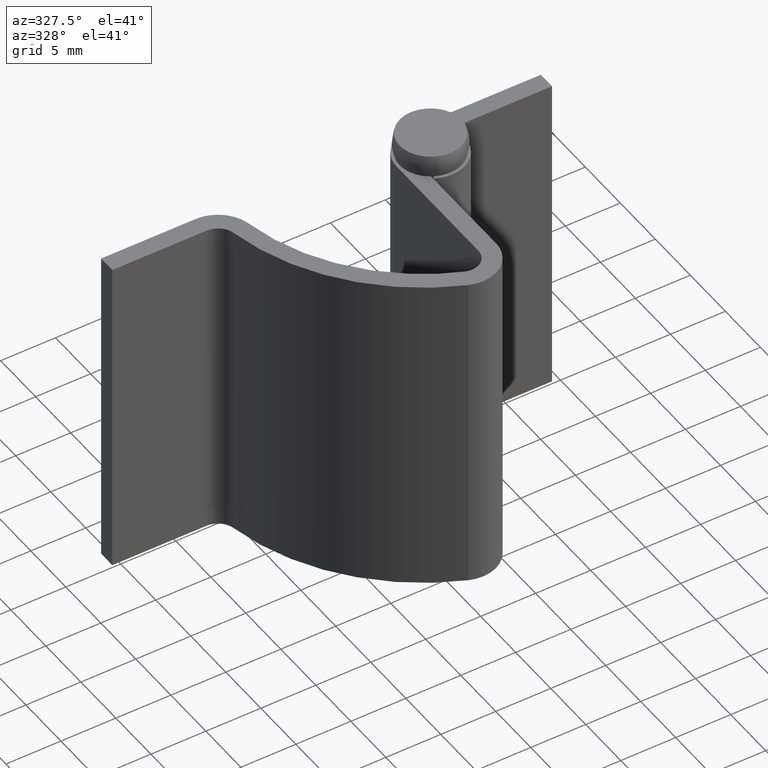
[diagram: clean part render]
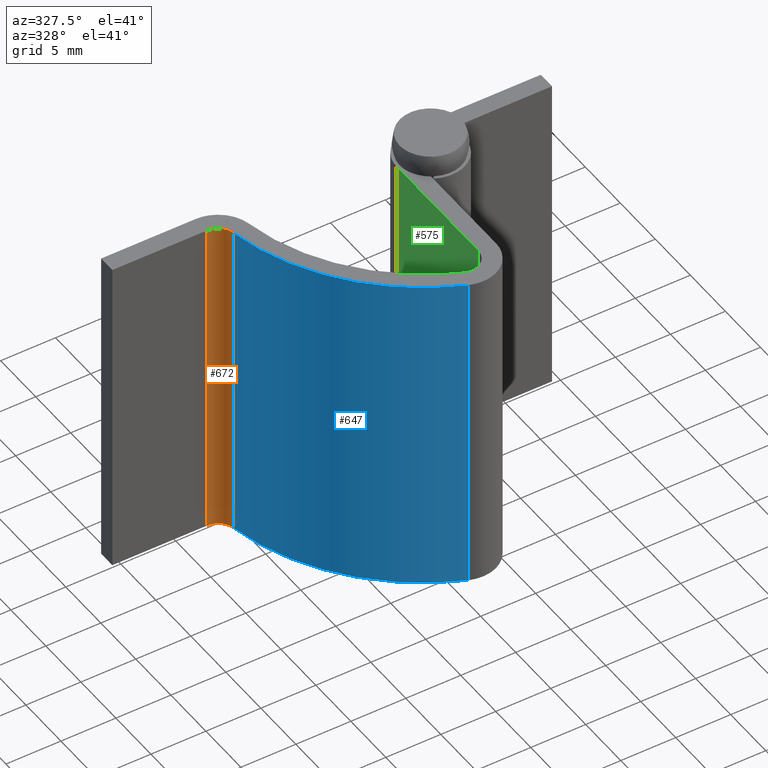
[diagram: same view with three faces highlighted in distinct colors, each labeled with its STEP entity id]
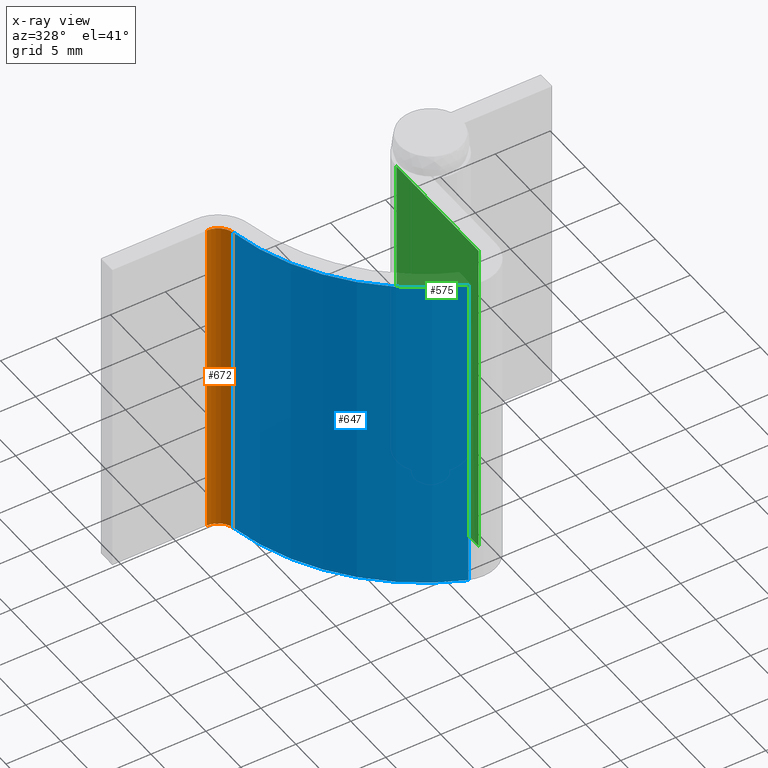
[diagram: x-ray of the same camera — body ghosted, the three highlighted faces saturated]
A machine part, auxiliary view with three faces highlighted in distinct colors.
The next image is the same camera in x-ray (body ghosted, the three faces saturated) — at least one of them is partly hidden behind the body in this view.
Their STEP definitions:

[orange] entity #672 — the highlighted face is a freeform B-spline surface patch.
#187=CARTESIAN_POINT('',(-17.818602504459250,0.170421412215483,3.0));
#188=VERTEX_POINT('',#187);
#202=CARTESIAN_POINT('',(-19.395583999999999,1.500000000000000,3.0));
#203=VERTEX_POINT('',#202);
#204=CARTESIAN_POINT('',(-17.818602504459250,0.170421412215483,3.0));
#205=CARTESIAN_POINT('',(-18.046601182845382,1.499998500000002,3.000000000000000));
#206=CARTESIAN_POINT('',(-19.395583999999999,1.500000000000000,3.0));
#214=(BOUNDED_CURVE()B_SPLINE_CURVE(2,(#204,#205,#206),.UNSPECIFIED.,.F.,.U.)CURVE()GEOMETRIC_REPRESENTATION_ITEM()QUASI_UNIFORM_CURVE()RATIONAL_B_SPLINE_CURVE((1.0,0.764530986172135,1.0))REPRESENTATION_ITEM(''));
#215=EDGE_CURVE('',#188,#203,#214,.T.);
#314=CARTESIAN_POINT('',(-19.395583999999999,1.500000000000000,33.000008000000037));
#315=VERTEX_POINT('',#314);
#321=CARTESIAN_POINT('',(-17.818602504459250,0.170421412215483,33.000008000000037));
#322=VERTEX_POINT('',#321);
#323=CARTESIAN_POINT('',(-17.818602504459250,0.170421412215483,33.000008000000037));
#324=CARTESIAN_POINT('',(-18.046601182845382,1.499998500000002,33.000008000000037));
#325=CARTESIAN_POINT('',(-19.395583999999999,1.500000000000000,33.000008000000037));
#333=(BOUNDED_CURVE()B_SPLINE_CURVE(2,(#323,#324,#325),.UNSPECIFIED.,.F.,.U.)CURVE()GEOMETRIC_REPRESENTATION_ITEM()QUASI_UNIFORM_CURVE()RATIONAL_B_SPLINE_CURVE((1.0,0.764530986172135,1.0))REPRESENTATION_ITEM(''));
#334=EDGE_CURVE('',#322,#315,#333,.T.);
#640=CARTESIAN_POINT('',(-17.818602504459250,0.170421412215483,33.000008000000037));
#641=CARTESIAN_POINT('',(-17.818602504459250,0.170421412215483,3.0));
#642=QUASI_UNIFORM_CURVE('',1,(#640,#641),.UNSPECIFIED.,.F.,.U.);
#643=EDGE_CURVE('',#322,#188,#642,.T.);
#648=CARTESIAN_POINT('',(-17.809272221801908,0.108838907552082,33.750008200000053));
#649=CARTESIAN_POINT('',(-17.809272221801908,0.108838907552082,2.231249795000000));
#650=CARTESIAN_POINT('',(-18.004610264678906,1.592578650106793,33.750008200000046));
#651=CARTESIAN_POINT('',(-18.004610264678906,1.592578650106793,2.231249795000000));
#652=CARTESIAN_POINT('',(-19.498079351925170,1.496710719748701,33.750008200000053));
#653=CARTESIAN_POINT('',(-19.498079351925170,1.496710719748701,2.231249795000000));
#661=(BOUNDED_SURFACE()B_SPLINE_SURFACE(1,2,((#648,#650,#652),(#649,#651,#653)),.UNSPECIFIED.,.F.,.F.,.U.)B_SPLINE_SURFACE_WITH_KNOTS((2,2),(3,3),(0.0,31.518758405000050),(0.0,2.526598923746187),.UNSPECIFIED.)GEOMETRIC_REPRESENTATION_ITEM()RATIONAL_B_SPLINE_SURFACE(((1.0,0.728245906885297,0.994316978863974),(1.0,0.728245906885297,0.994316978863974)))REPRESENTATION_ITEM('')SURFACE());
#662=ORIENTED_EDGE('',*,*,#215,.F.);
#663=ORIENTED_EDGE('',*,*,#643,.F.);
#664=ORIENTED_EDGE('',*,*,#334,.T.);
#665=CARTESIAN_POINT('',(-19.395583999999999,1.500000000000000,33.000008000000037));
#666=CARTESIAN_POINT('',(-19.395583999999999,1.500000000000000,3.0));
#667=QUASI_UNIFORM_CURVE('',1,(#665,#666),.UNSPECIFIED.,.F.,.U.);
#668=EDGE_CURVE('',#315,#203,#667,.T.);
#669=ORIENTED_EDGE('',*,*,#668,.T.);
#670=EDGE_LOOP('',(#662,#663,#664,#669));
#671=FACE_OUTER_BOUND('',#670,.T.);
#672=ADVANCED_FACE('',(#671),#661,.F.);

[blue] entity #647 — the highlighted face is a freeform B-spline surface patch.
#170=CARTESIAN_POINT('',(-5.909637492893420,-14.662561530130020,3.0));
#171=VERTEX_POINT('',#170);
#187=CARTESIAN_POINT('',(-17.818602504459250,0.170421412215483,3.0));
#188=VERTEX_POINT('',#187);
#189=CARTESIAN_POINT('',(-17.818602504459250,0.170421412215483,3.0));
#190=CARTESIAN_POINT('',(-15.980121221927341,-10.550686180056069,3.000000000000000));
#191=CARTESIAN_POINT('',(-5.909637492893428,-14.662561530130020,3.0));
#199=(BOUNDED_CURVE()B_SPLINE_CURVE(2,(#189,#190,#191),.UNSPECIFIED.,.F.,.U.)CURVE()GEOMETRIC_REPRESENTATION_ITEM()QUASI_UNIFORM_CURVE()RATIONAL_B_SPLINE_CURVE((1.0,0.874371004086466,1.0))REPRESENTATION_ITEM(''));
#200=EDGE_CURVE('',#188,#171,#199,.T.);
#321=CARTESIAN_POINT('',(-17.818602504459250,0.170421412215483,33.000008000000037));
#322=VERTEX_POINT('',#321);
#336=CARTESIAN_POINT('',(-5.909637492893420,-14.662561530130020,33.000008000000037));
#337=VERTEX_POINT('',#336);
#338=CARTESIAN_POINT('',(-17.818602504459250,0.170421412215483,33.000008000000037));
#339=CARTESIAN_POINT('',(-15.980121221927341,-10.550686180056069,33.000008000000051));
#340=CARTESIAN_POINT('',(-5.909637492893428,-14.662561530130020,33.000008000000037));
#348=(BOUNDED_CURVE()B_SPLINE_CURVE(2,(#338,#339,#340),.UNSPECIFIED.,.F.,.U.)CURVE()GEOMETRIC_REPRESENTATION_ITEM()QUASI_UNIFORM_CURVE()RATIONAL_B_SPLINE_CURVE((1.0,0.874371004086466,1.0))REPRESENTATION_ITEM(''));
#349=EDGE_CURVE('',#322,#337,#348,.T.);
#615=CARTESIAN_POINT('',(-5.909637492893420,-14.662561530130020,33.000008000000037));
#616=CARTESIAN_POINT('',(-5.909637492893420,-14.662561530130020,3.0));
#617=QUASI_UNIFORM_CURVE('',1,(#615,#616),.UNSPECIFIED.,.F.,.U.);
#618=EDGE_CURVE('',#337,#171,#617,.T.);
#623=CARTESIAN_POINT('',(-17.846775711690139,0.339126898701132,33.750008200000053));
#624=CARTESIAN_POINT('',(-17.846775711690139,0.339126898701132,2.231249795000000));
#625=CARTESIAN_POINT('',(-15.982320734893564,-11.133568904528294,33.750008200000046));
#626=CARTESIAN_POINT('',(-15.982320734893564,-11.133568904528294,2.231249795000001));
#627=CARTESIAN_POINT('',(-5.021191716625551,-15.000427060553996,33.750008200000046));
#628=CARTESIAN_POINT('',(-5.021191716625551,-15.000427060553996,2.231249795000000));
#636=(BOUNDED_SURFACE()B_SPLINE_SURFACE(1,2,((#623,#625,#627),(#624,#626,#628)),.UNSPECIFIED.,.F.,.F.,.U.)B_SPLINE_SURFACE_WITH_KNOTS((2,2),(3,3),(0.0,31.518758405000050),(0.0,21.498415924789789),.UNSPECIFIED.)GEOMETRIC_REPRESENTATION_ITEM()RATIONAL_B_SPLINE_SURFACE(((1.0,0.858767733834264,0.996834999279415),(1.0,0.858767733834264,0.996834999279415)))REPRESENTATION_ITEM('')SURFACE());
#637=ORIENTED_EDGE('',*,*,#200,.T.);
#638=ORIENTED_EDGE('',*,*,#618,.F.);
#639=ORIENTED_EDGE('',*,*,#349,.F.);
#640=CARTESIAN_POINT('',(-17.818602504459250,0.170421412215483,33.000008000000037));
#641=CARTESIAN_POINT('',(-17.818602504459250,0.170421412215483,3.0));
#642=QUASI_UNIFORM_CURVE('',1,(#640,#641),.UNSPECIFIED.,.F.,.U.);
#643=EDGE_CURVE('',#322,#188,#642,.T.);
#644=ORIENTED_EDGE('',*,*,#643,.T.);
#645=EDGE_LOOP('',(#637,#638,#639,#644));
#646=FACE_OUTER_BOUND('',#645,.T.);
#647=ADVANCED_FACE('',(#646),#636,.T.);

[green] entity #575 — the highlighted face is a freeform B-spline surface patch.
#79=CARTESIAN_POINT('',(-3.099998000000000,-2.900002000000000,18.0));
#80=VERTEX_POINT('',#79);
#86=CARTESIAN_POINT('',(-3.099998000000000,-0.003521362804717,18.0));
#87=VERTEX_POINT('',#86);
#88=CARTESIAN_POINT('',(-3.099998000000000,-0.003521362804717,18.0));
#89=CARTESIAN_POINT('',(-3.099998000000000,-2.900002000000000,18.0));
#90=QUASI_UNIFORM_CURVE('',1,(#88,#89),.UNSPECIFIED.,.F.,.U.);
#91=EDGE_CURVE('',#87,#80,#90,.T.);
#134=CARTESIAN_POINT('',(-3.099998000000000,-2.900002000000000,3.0));
#135=VERTEX_POINT('',#134);
#143=CARTESIAN_POINT('',(-3.099998000000000,-2.900002000000000,18.0));
#144=CARTESIAN_POINT('',(-3.099998000000000,-2.900002000000000,3.0));
#145=QUASI_UNIFORM_CURVE('',1,(#143,#144),.UNSPECIFIED.,.F.,.U.);
#146=EDGE_CURVE('',#80,#135,#145,.T.);
#268=CARTESIAN_POINT('',(-3.099998000000000,-11.700001000000000,3.0));
#269=VERTEX_POINT('',#268);
#285=CARTESIAN_POINT('',(-3.099998000000000,-2.900002000000000,3.0));
#286=CARTESIAN_POINT('',(-3.099998000000000,-11.700001000000000,3.0));
#287=QUASI_UNIFORM_CURVE('',1,(#285,#286),.UNSPECIFIED.,.F.,.U.);
#288=EDGE_CURVE('',#135,#269,#287,.T.);
#403=CARTESIAN_POINT('',(-3.099998000000000,-0.003521362804717,33.000008000000037));
#404=VERTEX_POINT('',#403);
#424=CARTESIAN_POINT('',(-3.099998000000000,-11.700001000000000,33.000008000000037));
#425=VERTEX_POINT('',#424);
#426=CARTESIAN_POINT('',(-3.099998000000000,-0.003521362804717,33.000008000000037));
#427=CARTESIAN_POINT('',(-3.099998000000000,-11.700001000000000,33.000008000000037));
#428=QUASI_UNIFORM_CURVE('',1,(#426,#427),.UNSPECIFIED.,.F.,.U.);
#429=EDGE_CURVE('',#404,#425,#428,.T.);
#550=CARTESIAN_POINT('',(-3.099998000000000,-11.700001000000000,33.000008000000037));
#551=CARTESIAN_POINT('',(-3.099998000000000,-11.700001000000000,3.0));
#552=QUASI_UNIFORM_CURVE('',1,(#550,#551),.UNSPECIFIED.,.F.,.U.);
#553=EDGE_CURVE('',#425,#269,#552,.T.);
#558=CARTESIAN_POINT('',(-3.099998000000000,0.580717730615099,34.498508059835608));
#559=CARTESIAN_POINT('',(-3.099998000000000,0.580717730615099,1.501498867280554));
#560=CARTESIAN_POINT('',(-3.099998000000000,-12.284239570546429,34.498508059835608));
#561=CARTESIAN_POINT('',(-3.099998000000000,-12.284239570546429,1.501498867280554));
#562=B_SPLINE_SURFACE_WITH_KNOTS('',1,1,((#558,#560),(#559,#561)),.UNSPECIFIED.,.F.,.F.,.U.,(2,2),(2,2),(0.0,32.997009192555062),(0.0,12.864957301161530),.UNSPECIFIED.);
#563=ORIENTED_EDGE('',*,*,#146,.T.);
#564=ORIENTED_EDGE('',*,*,#288,.T.);
#565=ORIENTED_EDGE('',*,*,#553,.F.);
#566=ORIENTED_EDGE('',*,*,#429,.F.);
#567=CARTESIAN_POINT('',(-3.099998000000000,-0.003521362804717,33.000008000000037));
#568=CARTESIAN_POINT('',(-3.099998000000000,-0.003521362804717,18.0));
#569=QUASI_UNIFORM_CURVE('',1,(#567,#568),.UNSPECIFIED.,.F.,.U.);
#570=EDGE_CURVE('',#404,#87,#569,.T.);
#571=ORIENTED_EDGE('',*,*,#570,.T.);
#572=ORIENTED_EDGE('',*,*,#91,.T.);
#573=EDGE_LOOP('',(#563,#564,#565,#566,#571,#572));
#574=FACE_OUTER_BOUND('',#573,.T.);
#575=ADVANCED_FACE('',(#574),#562,.T.);